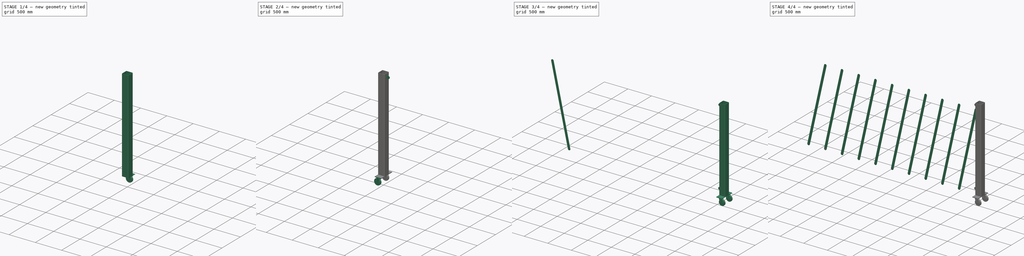
[diagram: build sequence overview — one tinted view per stage of 4, left to right]
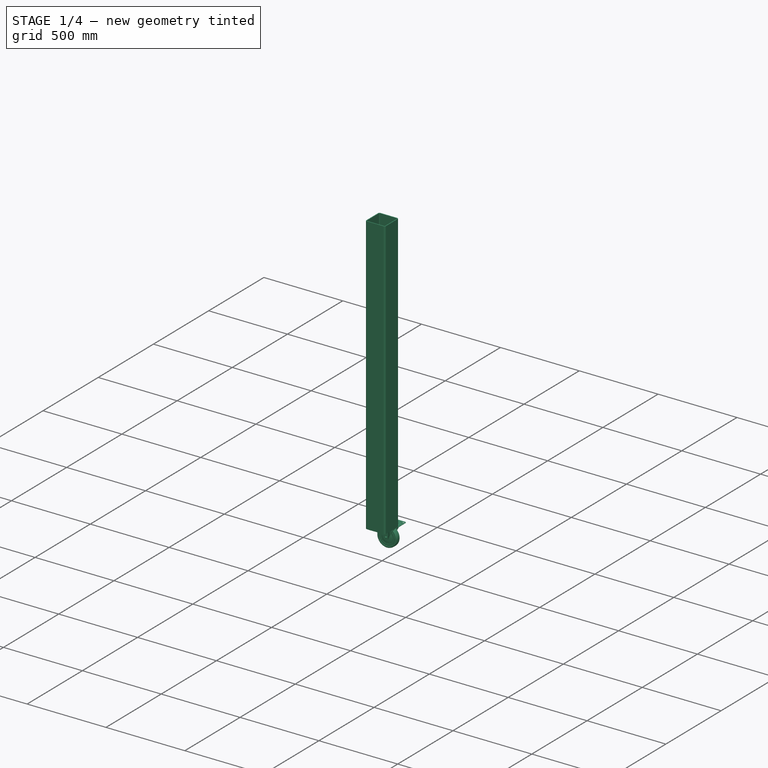
[diagram: stage 1 of 4 — iso view after this stage's code; geometry added in this stage tinted green]
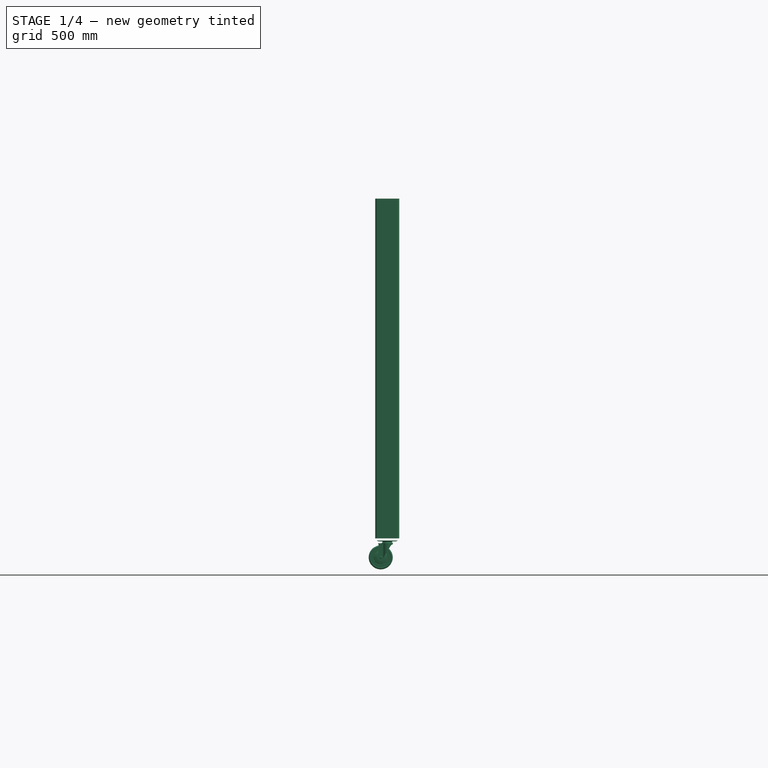
[diagram: stage 1 of 4 — front view after this stage's code; geometry added in this stage tinted green]
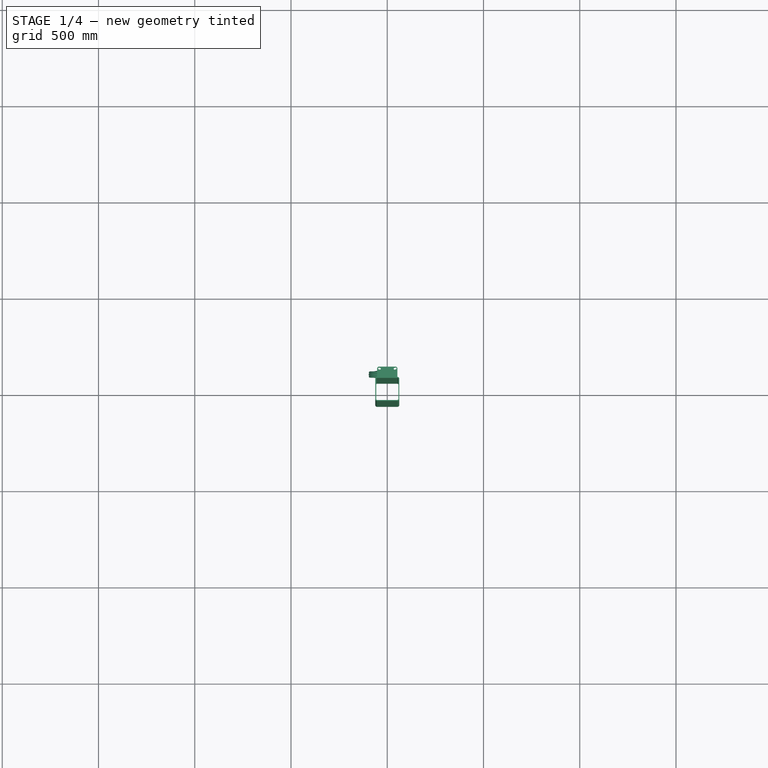
[diagram: stage 1 of 4 — top view after this stage's code; geometry added in this stage tinted green]
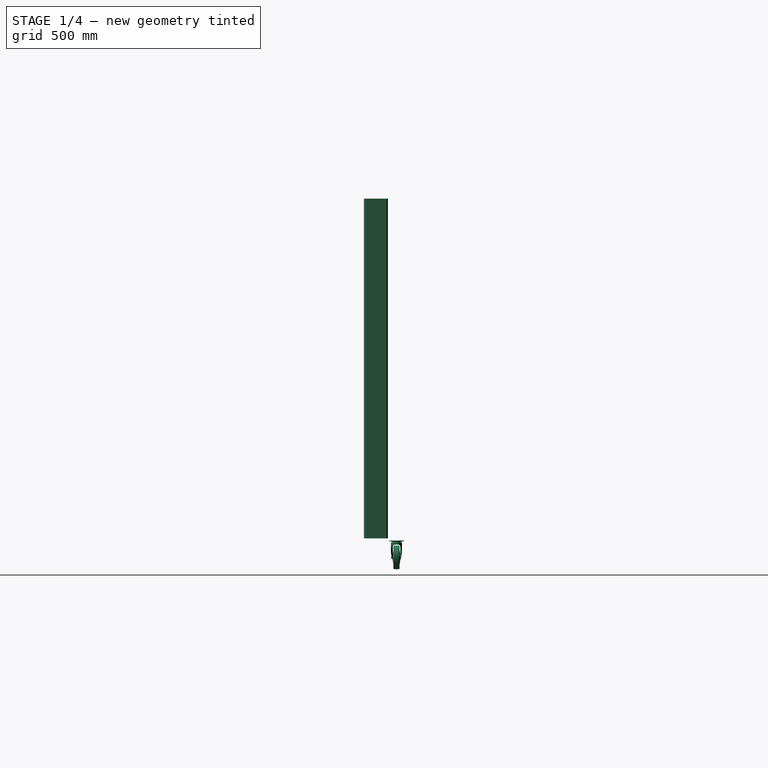
[diagram: stage 1 of 4 — right view after this stage's code; geometry added in this stage tinted green]
FCSTD DOCUMENT  (FreeCAD 1.0R39319 (Git))
Label: accodionGate
License: All rights reserved
objects: Part::FeaturePython×5, App::Part×5, Sketcher::SketchObject×2, Part::Mirroring×2, Part::Extrusion×2, Part::Feature×2, PartDesign::Pad×1, PartDesign::Body×1, Spreadsheet::Sheet×1, Part::MultiFuse×1
note: 19 computed .brp shape members not serialized (recipe doc carries the construction recipe); baked Part::Feature solids carry a one-line shape summary decoded from their .brp

FEATURE [Part::Feature] Part__Feature  label="_420M-RB 125mp"
  shape: bbox 80 x 100.5 x 105 mm, 140 faces (baked)
FEATURE [Part::Feature] Part__Feature001  label="_434MB-RB 125"
  Placement = pos=(0,-87.5,34) rot=(0,0,1;3.14159rad)
  shape: bbox 38.2 x 137.1 x 137.1 mm, 56 faces (baked)
FEATURE [App::Part] _20M_RB_125  label="420M-RB 125"
  Group = -> [Part__Feature,Part__Feature001]
  Origin = -> Origin003
  Placement = pos=(0,0,0) rot=(1,0,0;1.5708rad)
FEATURE [App::Part] _25_________________v1  label="125キャスター 
v1"
  Group = -> [_20M_RB_125]
  Origin = -> Origin004
  Placement = pos=(0,-107,-11) rot=(0,0,1;4.71239rad)
FEATURE [Part::Mirroring] mirror001  label="125キャスター 
v1 (mirrored) "
  Base = (0,0,-200)
  Normal = (0,-1,0)
  Source = -> _25_________________v1
FEATURE [Part::FeaturePython] SquarePipe  # WARN: FeaturePython — macro-defined, semantics opaque (R4)
  A = 125
  B = 125
  JPN = 角形鋼管
  L = 1765
  Placement = pos=(0,0,0) rot=(1,0,0;1.5708rad)
  Solid = true
  Standard = □125x125x5  L=1000
  g0 = 7.85
  mass = 32.3606
  size = 39
  standard = SS
  t = 5
  type = 10_Square_Pipe
  expr: L = Spreadsheet.H0 + 165
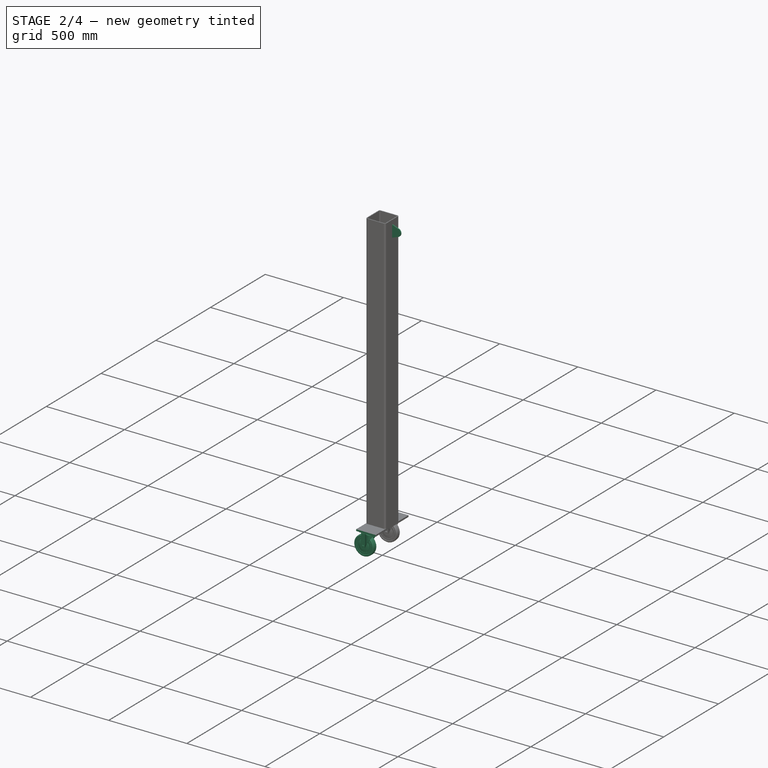
[diagram: stage 2 of 4 — iso view after this stage's code; geometry added in this stage tinted green]
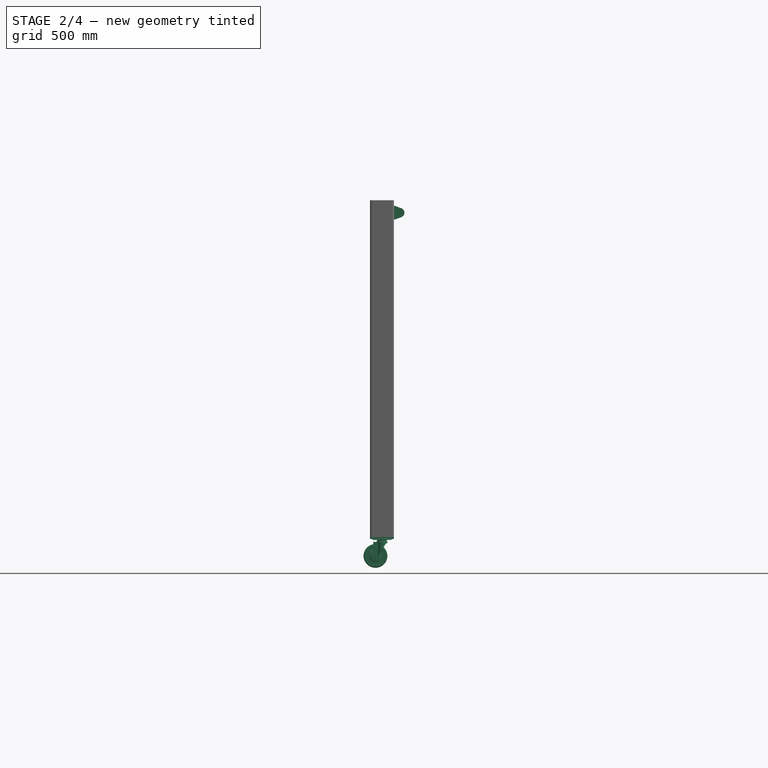
[diagram: stage 2 of 4 — front view after this stage's code; geometry added in this stage tinted green]
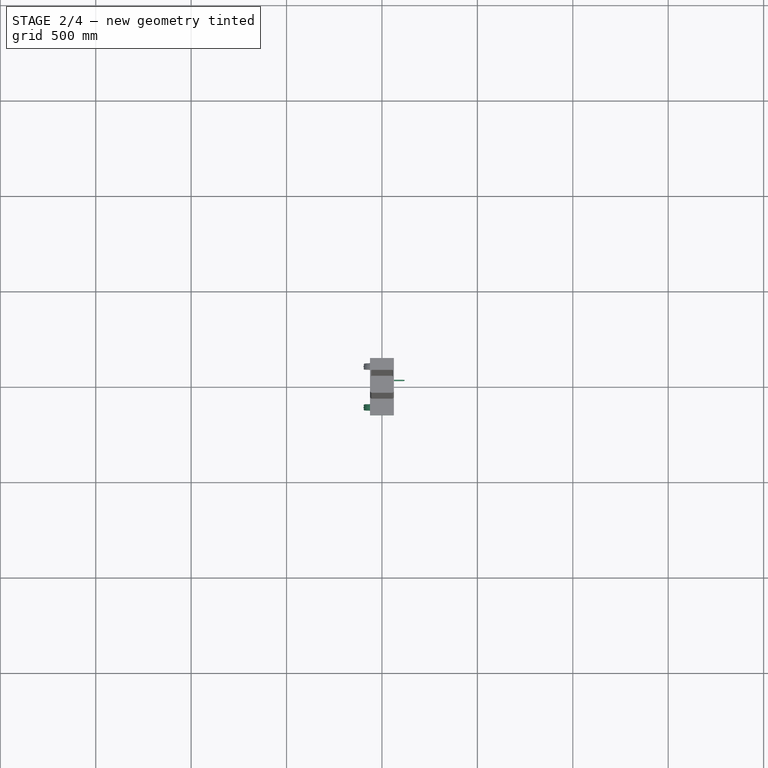
[diagram: stage 2 of 4 — top view after this stage's code; geometry added in this stage tinted green]
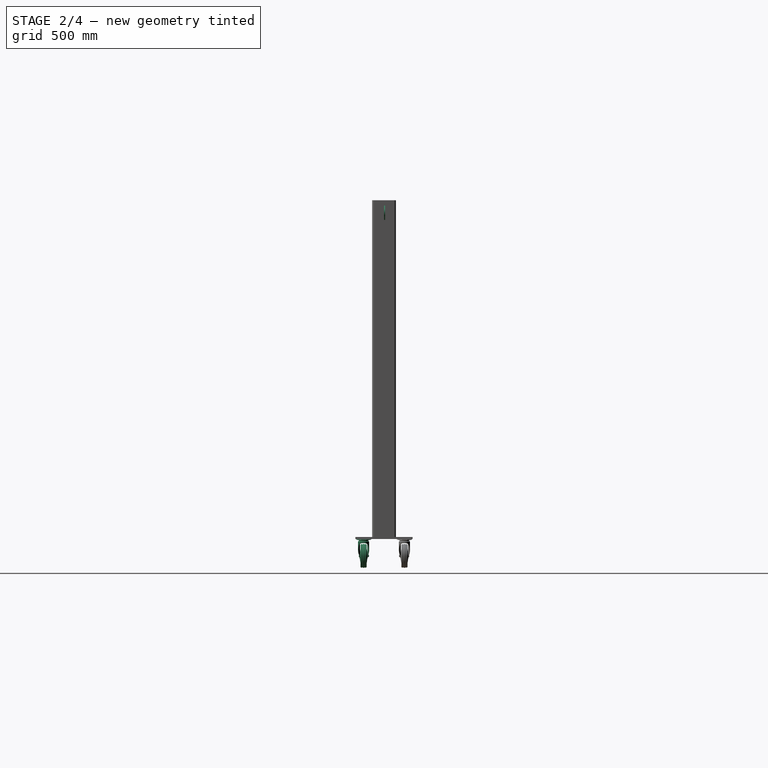
[diagram: stage 2 of 4 — right view after this stage's code; geometry added in this stage tinted green]
FEATURE [App::Part] Part  label="fence"
  Group = -> [Body,Array,mirror]
  Origin = -> Origin001
  Placement = pos=(0,0,100) rot=(0,0,1;0rad)
FEATURE [Sketcher::SketchObject] Sketch001
  ArcFitTolerance = 0
  FullyConstrained = false
  MakeInternals = false
  MapMode = 5
  Placement = pos=(0,0,0) rot=(1,0,0;1.5708rad)
  sketch-geometry (4):
    g0: LineSegment StartX=-37.1523 StartY=762.155 StartZ=0 EndX=-37.1523 EndY=837.155 EndZ=0
    g1: LineSegment StartX=-37.1523 StartY=837.155 StartZ=0 EndX=1.3855 EndY=823.152 EndZ=0
    g2: ArcOfCircle CenterX=-7.15232 CenterY=799.655 CenterZ=0 NormalX=0 NormalY=0 NormalZ=1 AngleXU=0 Radius=25 StartAngle=5.06092 EndAngle=7.50546
    g3: LineSegment StartX=1.3855 StartY=776.158 StartZ=0 EndX=-37.1523 EndY=762.155 EndZ=0
  constraints (9):
    c: Vertical(g0)
    c: Coincident(g0,g1)
    c: Tangent(g1,g2) = 1.5708
    c: Coincident(g3,g0)
    c: Tangent(g2,g3) = 1.5708
    c: Equal(g1,g3)
    c: DistanceY(g0,g0) = 75
    c: Radius(g2) = 25
    c: DistanceX(g0,g2) = 30
FEATURE [Part::Extrusion] Extrude001
  Base = -> Sketch001
  Dir = (0,-1,2e-16)
  DirMode = 2
  FaceMakerClass = Part::FaceMakerBullseye
  FaceMakerMode = 3
  LengthFwd = 6
  LengthRev = 0
  Placement = pos=(100,6,900) rot=(0,0,1;0rad)
  Solid = true
  Symmetric = false
  expr: .Placement.Base.y = Spreadsheet.t0
  expr: .Placement.Base.z = Spreadsheet.H0 - 700
FEATURE [Part::FeaturePython] Rectang  # WARN: FeaturePython — macro-defined, semantics opaque (R4)
  B = 125
  H = 300
  sface = 0
FEATURE [Part::Extrusion] Extrude
  Base = -> Rectang
  Dir = (0,0,-1)
  DirMode = 2
  FaceMakerClass = Part::FaceMakerBullseye
  FaceMakerMode = 3
  LengthFwd = 10
  LengthRev = 0
  Solid = false
  Symmetric = false
FEATURE [Part::MultiFuse] Fusion
  Refine = true
  Shapes = -> [mirror001,_25_________________v1]
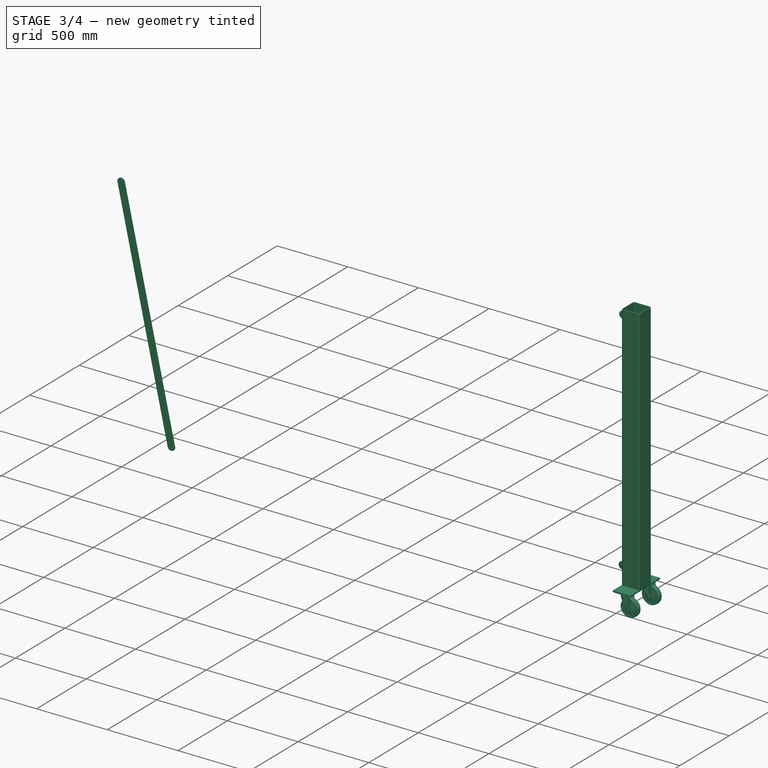
[diagram: stage 3 of 4 — iso view after this stage's code; geometry added in this stage tinted green]
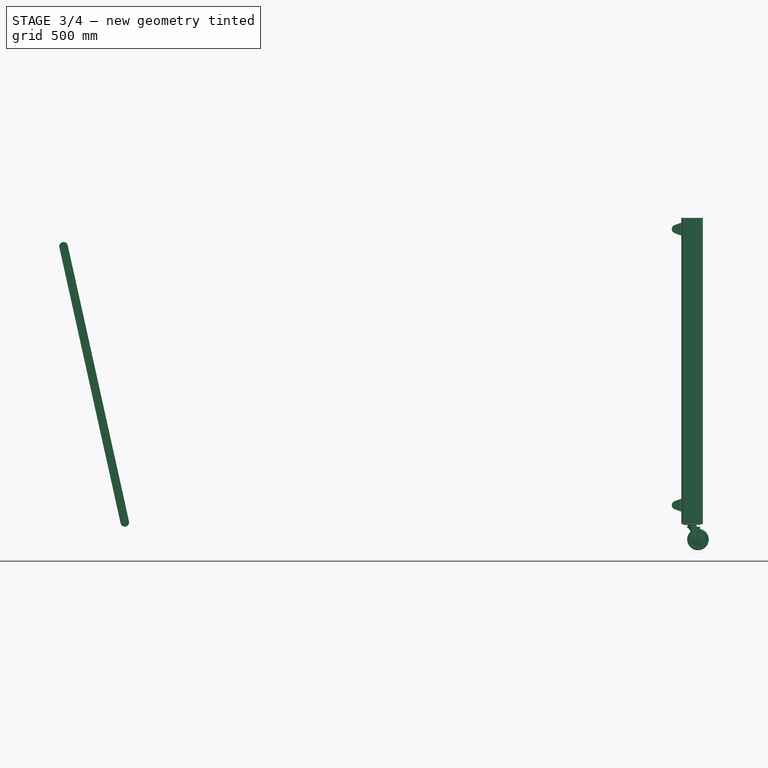
[diagram: stage 3 of 4 — front view after this stage's code; geometry added in this stage tinted green]
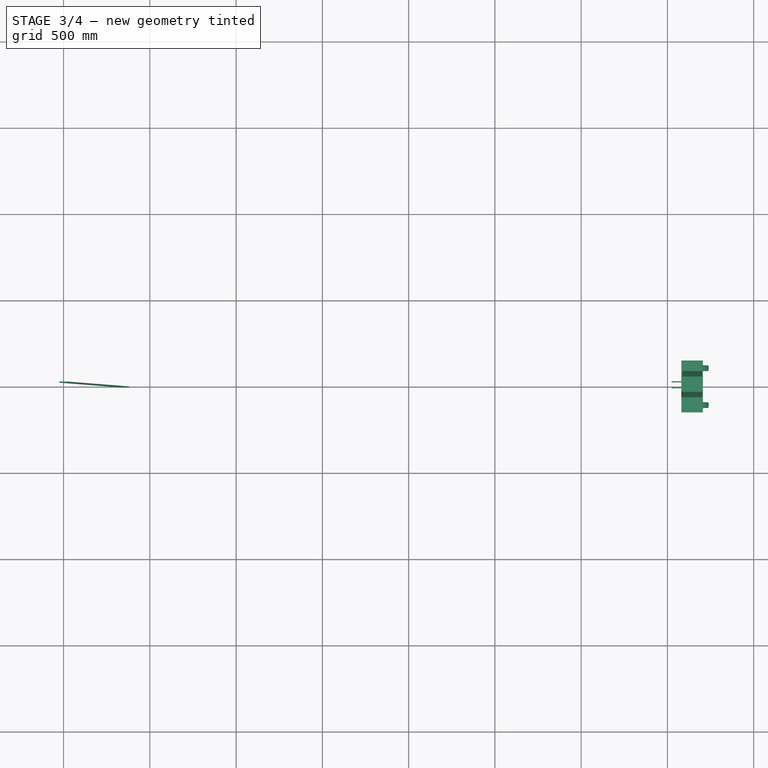
[diagram: stage 3 of 4 — top view after this stage's code; geometry added in this stage tinted green]
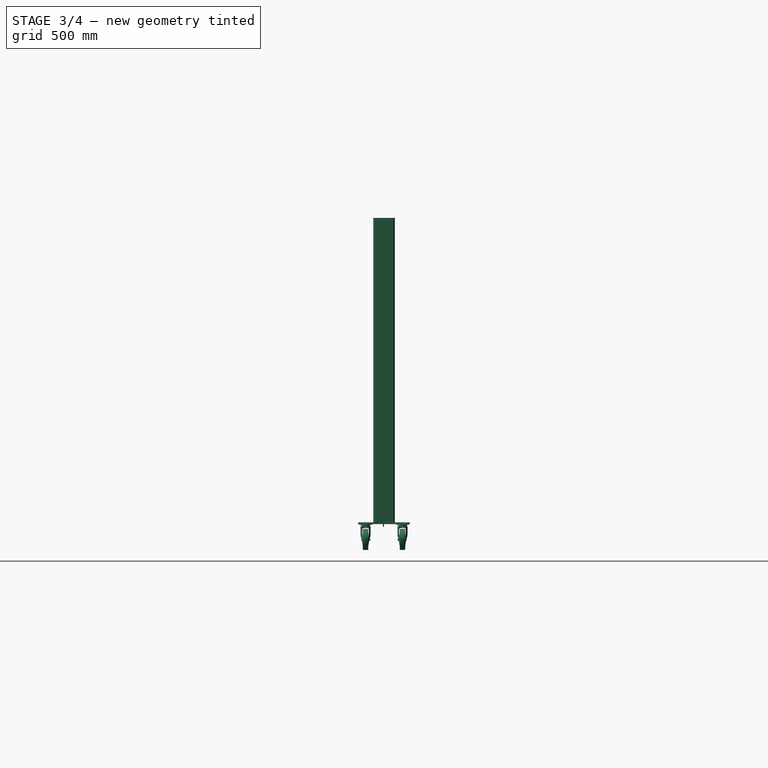
[diagram: stage 3 of 4 — right view after this stage's code; geometry added in this stage tinted green]
FEATURE [Sketcher::SketchObject] Sketch
  ArcFitTolerance = 0
  FullyConstrained = true
  MakeInternals = false
  MapMode = 5
  Placement = pos=(0,0,0) rot=(1,0,0;1.5708rad)
  expr: Constraints[59] = Spreadsheet.L0
  expr: Constraints[60] = Spreadsheet.H0
  expr: Constraints[68] = Spreadsheet.b0 / 2
  sketch-geometry (24):
    g0: LineSegment [constr] StartX=0 StartY=0 StartZ=0 EndX=355 EndY=1600 EndZ=0
    g1: LineSegment [constr] StartX=355 StartY=1600 StartZ=0 EndX=710 EndY=0 EndZ=0
    g2: LineSegment [constr] StartX=710 StartY=0 StartZ=0 EndX=1065 EndY=1600 EndZ=0
    g3: LineSegment [constr] StartX=1065 StartY=1600 StartZ=0 EndX=1420 EndY=0 EndZ=0
    g4: LineSegment [constr] StartX=1420 StartY=0 StartZ=0 EndX=1775 EndY=1600 EndZ=0
    g5: LineSegment [constr] StartX=1775 StartY=1600 StartZ=0 EndX=2130 EndY=0 EndZ=0
    g6: LineSegment [constr] StartX=2130 StartY=0 StartZ=0 EndX=2485 EndY=1600 EndZ=0
    g7: LineSegment [constr] StartX=2485 StartY=1600 StartZ=0 EndX=2840 EndY=0 EndZ=0
    g8: LineSegment [constr] StartX=2840 StartY=0 StartZ=0 EndX=3195 EndY=1600 EndZ=0
    g9: LineSegment [constr] StartX=3195 StartY=1600 StartZ=0 EndX=3550 EndY=0 EndZ=0
    g10: LineSegment [constr] StartX=0 StartY=1600 StartZ=0 EndX=355 EndY=0 EndZ=0
    g11: LineSegment [constr] StartX=355 StartY=6.71e-14 StartZ=0 EndX=710 EndY=1600 EndZ=0
    g12: LineSegment [constr] StartX=710 StartY=1600 StartZ=0 EndX=1065 EndY=0 EndZ=0
    g13: LineSegment [constr] StartX=1065 StartY=0 StartZ=0 EndX=1420 EndY=1600 EndZ=0
    g14: LineSegment [constr] StartX=1420 StartY=1600 StartZ=0 EndX=1775 EndY=0 EndZ=0
    g15: LineSegment [constr] StartX=1775 StartY=0 StartZ=0 EndX=2130 EndY=1600 EndZ=0
    g16: LineSegment [constr] StartX=2130 StartY=1600 StartZ=0 EndX=2485 EndY=0 EndZ=0
    g17: LineSegment [constr] StartX=2485 StartY=0 StartZ=0 EndX=2840 EndY=1600 EndZ=0
    g18: LineSegment [constr] StartX=2840 StartY=1600 StartZ=0 EndX=3195 EndY=0 EndZ=0
    g19: LineSegment [constr] StartX=3195 StartY=0 StartZ=0 EndX=3550 EndY=1600 EndZ=0
    g20: LineSegment StartX=-24.4065 StartY=1594.58 StartZ=0 EndX=330.594 EndY=-5.41519 EndZ=0
    g21: ArcOfCircle CenterX=355 CenterY=6.71e-14 CenterZ=0 NormalX=0 NormalY=0 NormalZ=1 AngleXU=0 Radius=25 StartAngle=3.35993 EndAngle=6.50152
    g22: LineSegment StartX=379.406 StartY=5.41519 StartZ=0 EndX=24.4065 EndY=1605.42 EndZ=0
    g23: ArcOfCircle CenterX=0 CenterY=1600 CenterZ=0 NormalX=0 NormalY=0 NormalZ=1 AngleXU=0 Radius=25 StartAngle=0.218338 EndAngle=3.35993
  constraints (69):
    c: Coincident(g-1,g0)
    c: Coincident(g0,g1)
    c: PointOnObject(g1,g-1)
    c: Coincident(g1,g2)
    c: Coincident(g2,g3)
    c: PointOnObject(g3,g-1)
    c: Coincident(g3,g4)
    c: Coincident(g4,g5)
    c: Coincident(g5,g6)
    c: Coincident(g6,g7)
    c: Coincident(g7,g8)
    c: Coincident(g8,g9)
    c: PointOnObject(g9,g-1)
    c: Parallel(g0,g2)
    c: Parallel(g2,g4)
    c: Parallel(g4,g6)
    c: Parallel(g6,g8)
    c: Parallel(g1,g3)
    c: Parallel(g3,g5)
    c: Parallel(g5,g7)
    c: Equal(g0,g1)
    c: Parallel(g7,g9)
    c: Equal(g0,g2)
    c: Equal(g2,g4)
    c: Equal(g4,g6)
    c: Equal(g6,g8)
    c: PointOnObject(g7,g-1)
    c: PointOnObject(g5,g-1)
    c: PointOnObject(g10,g-2)
    c: Coincident(g10,g11)
    c: Coincident(g11,g12)
    c: PointOnObject(g12,g-1)
    c: Coincident(g12,g13)
    c: Coincident(g13,g14)
    c: Coincident(g14,g15)
    c: Coincident(g15,g16)
    c: PointOnObject(g16,g-1)
    c: Coincident(g16,g17)
    c: Coincident(g17,g18)
    c: Coincident(g18,g19)
    c: Equal(g10,g0)
    c: Equal(g10,g11)
    c: Equal(g2,g13)
    c: Equal(g4,g15)
    c: Equal(g6,g17)
    c: Equal(g8,g19)
    c: Equal(g10,g12)
    c: Equal(g3,g14)
    c: Equal(g5,g16)
    c: Equal(g7,g18)
    c: Vertical(g9,g19)
    c: PointOnObject(g18,g-1)
    c: PointOnObject(g14,g-1)
    c: Parallel(g19,g8)
    c: Parallel(g9,g18)
    c: Parallel(g10,g1)
    c: Parallel(g1,g12)
    c: Parallel(g3,g14)
    c: Parallel(g5,g16)
    c: DistanceX(g10,g19) = 3550
    c: DistanceY(g9,g19) = 1600
    c: Tangent(g20,g21) = -1.5708
    c: Tangent(g22,g23) = -1.5708
    c: Coincident(g23,g10)
    c: Tangent(g23,g20) = -1.5708
    c: Coincident(g21,g10)
    c: Tangent(g21,g22) = -1.5708
    c: Parallel(g22,g10)
    c: Radius(g23) = 25
FEATURE [PartDesign::Pad] Pad
  Direction = (0,-1,0)
  Length = 6
  Length2 = 10
  Placement = pos=(0,0,0) rot=(1,0,0;1.5708rad)
  Profile = -> Sketch
  ReferenceAxis = -> Sketch [N_Axis]
  Suppressed = false
  Type = 0
  expr: Length = Spreadsheet.t0
FEATURE [Part::FeaturePython] Clone  label="Extrude002"  # Draft clone (typed FeaturePython)
  AttacherType = Attacher::AttachEngine3D
  Fuse = false
  Objects = -> [Extrude001]
  Placement = pos=(100,12,-700) rot=(0,0,1;0rad)
  Scale = (1,1,1)
  expr: .Placement.Base.y = Spreadsheet.t0 * 2
FEATURE [App::Part] Part001  label="post"
  Group = -> [Sketch001,Extrude001,Clone,Rectang,Extrude,_25_________________v1,mirror001,Fusion,SquarePipe]
  Origin = -> Origin002
  Placement = pos=(-100,0,0) rot=(0,0,1;0rad)
FEATURE [Part::FeaturePython] Clone001  label="post001"  # Draft clone (typed FeaturePython)
  AttacherType = Attacher::AttachEngine3D
  Fuse = false
  Objects = -> [Part001]
  Placement = pos=(3643,1e-14,0) rot=(0,0,1;3.14159rad)
  Scale = (1,1,1)
  expr: .Placement.Base.x = Spreadsheet.L0 + 93
FEATURE [App::Part] Part002  label="sliderFence"
  Group = -> [Part001,Spreadsheet,Part,Clone001]
  JPN = アコーディオンゲート
  Origin = -> Origin005
  count = 1
  g0 = 7.85
  mass = 93.4318
  material = SS41
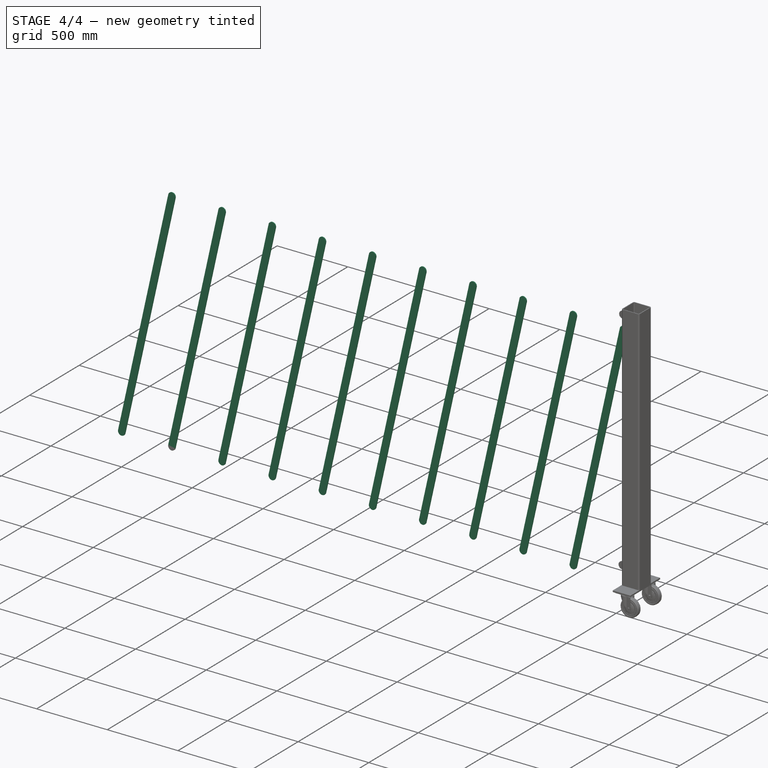
[diagram: stage 4 of 4 — iso view after this stage's code; geometry added in this stage tinted green]
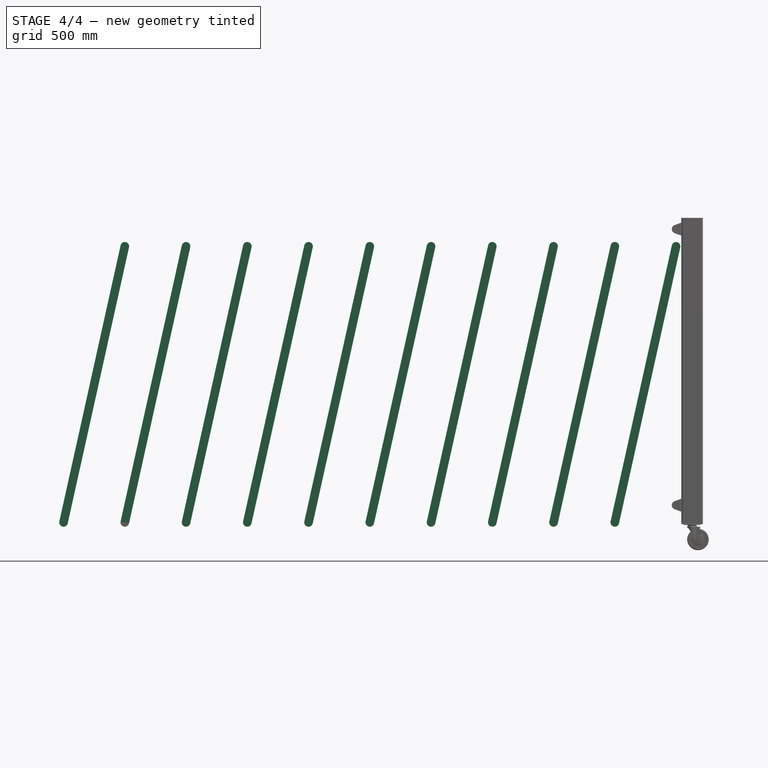
[diagram: stage 4 of 4 — front view after this stage's code; geometry added in this stage tinted green]
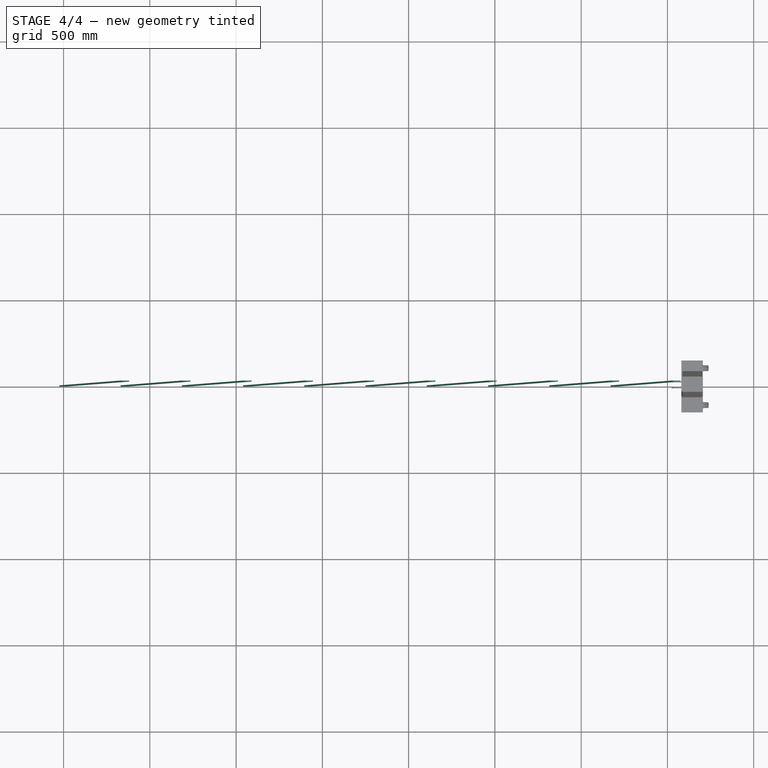
[diagram: stage 4 of 4 — top view after this stage's code; geometry added in this stage tinted green]
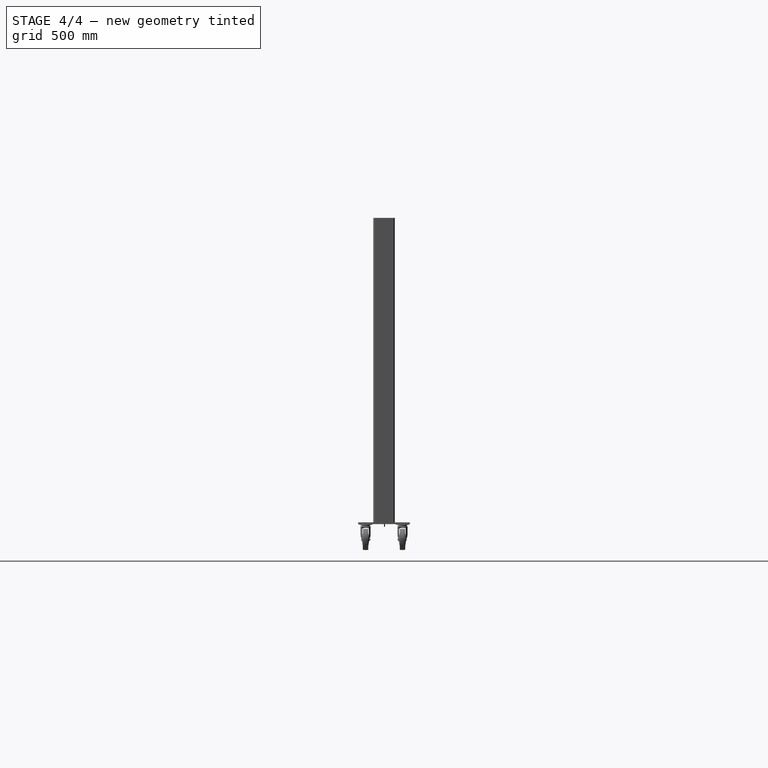
[diagram: stage 4 of 4 — right view after this stage's code; geometry added in this stage tinted green]
FEATURE [PartDesign::Body] Body
  AllowCompound = false
  Group = -> [Sketch,Pad]
  Origin = -> Origin
  Tip = -> Pad
FEATURE [Part::FeaturePython] Array  # Draft array (typed FeaturePython)
  AlwaysSyncPlacement = false
  Angle = 360
  ArrayType = 0
  Axis = (0,0,1)
  Base = -> Body
  Center = (0,0,0)
  Count = 10
  ExpandArray = false
  Fuse = false
  IntervalAxis = (0,0,0)
  IntervalX = (355,0,0)
  IntervalY = (0,100,0)
  IntervalZ = (0,0,100)
  NumberCircles = 3
  NumberPolar = 5
  NumberX = 10
  NumberY = 1
  NumberZ = 1
  PlacementList = 10 placements: arithmetic series from (0,0,0) step (355,0,0) to (3195,0,0)
  RadialDistance = 50
  ScaleList = (10) [(1,1,1),(1,1,1),(1,1,1),(1,1,1),(1,1,1),(1,1,1),(1,1,1),(1,1,1),(1,1,1),(1,1,1)]
  Symmetry = 1
  TangentialDistance = 25
  expr: .IntervalX.x = Spreadsheet.L0 / 10
FEATURE [Spreadsheet::Sheet] Spreadsheet
  cells = A2='hight H0; B2(H0)=1600; A3='length L0; B3(L0)=3550; A4='thickness t0; B4(t0)=6; A5='width b0; B5(b0)=50
FEATURE [Part::Mirroring] mirror  label="Array (mirrored) "
  Base = (-100,2.38419e-05,400)
  Normal = (0,0,1)
  Placement = pos=(0,6,800) rot=(0,0,1;0rad)
  Source = -> Array
  expr: .Placement.Base.z = Spreadsheet.H0 - 800
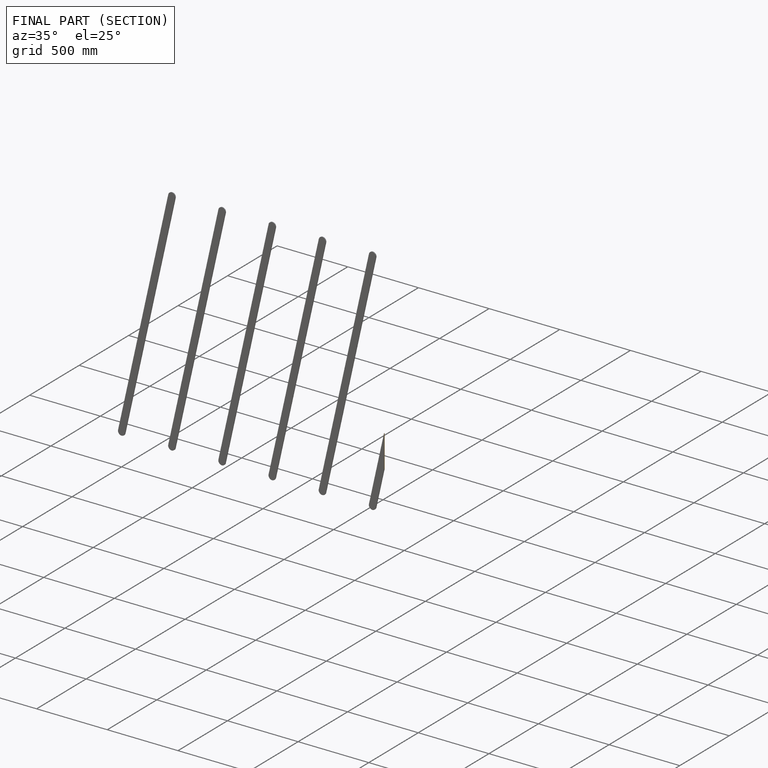
[diagram: finished part — half-section view (interior)]
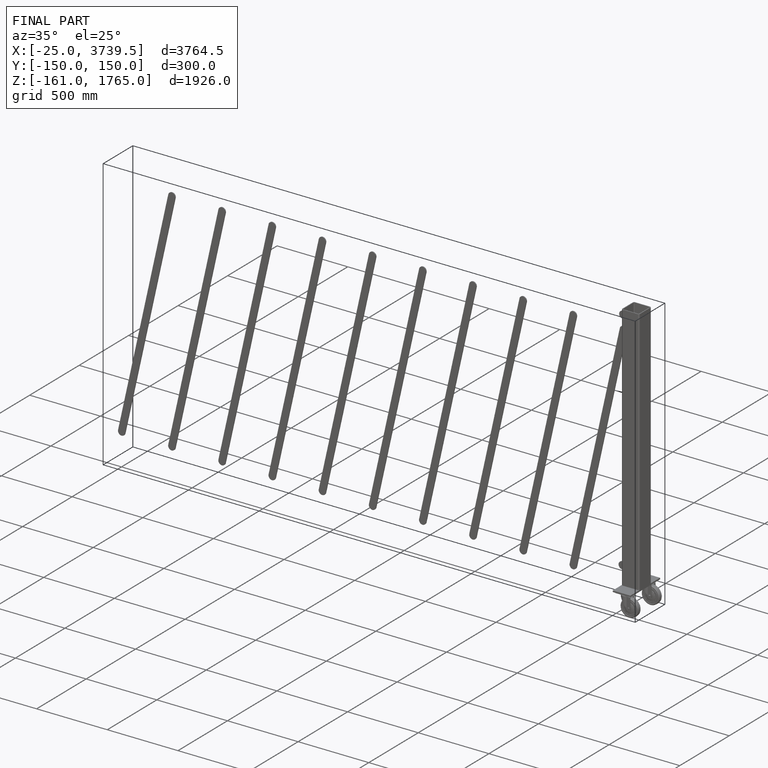
[diagram: finished part — iso view with bounding-box wireframe]
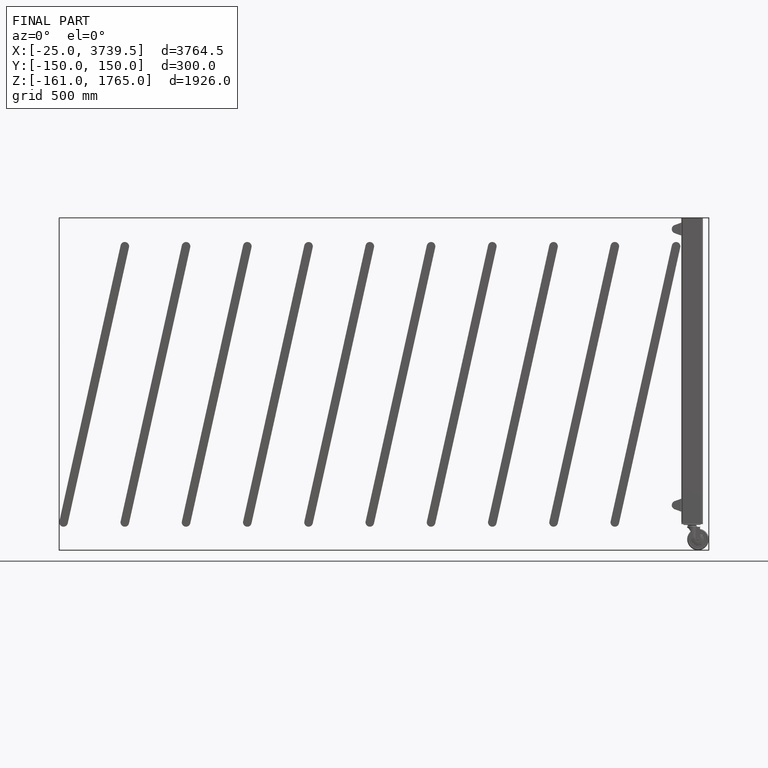
[diagram: finished part — front view with bounding-box wireframe]
